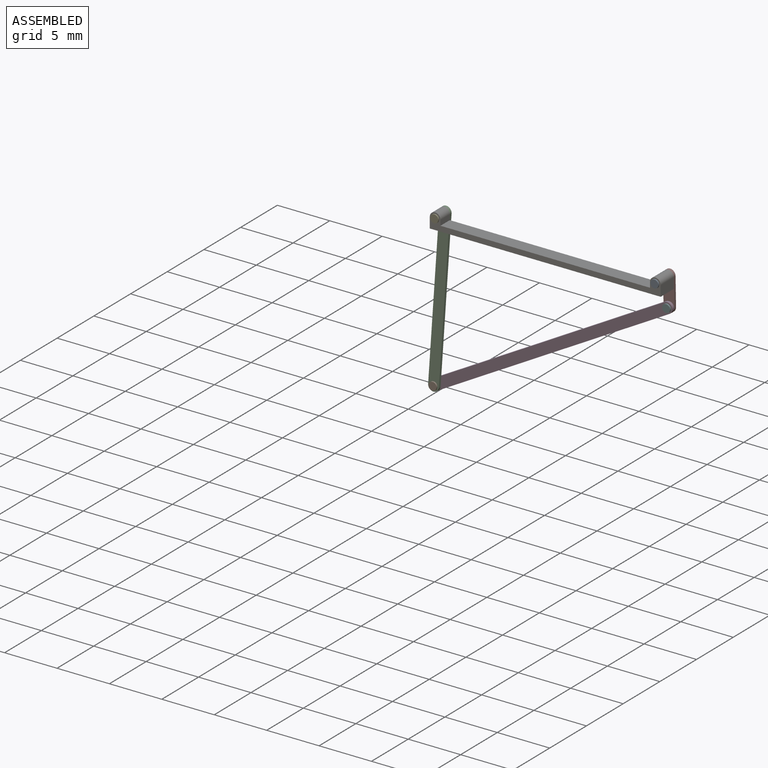
[diagram: assembled view]
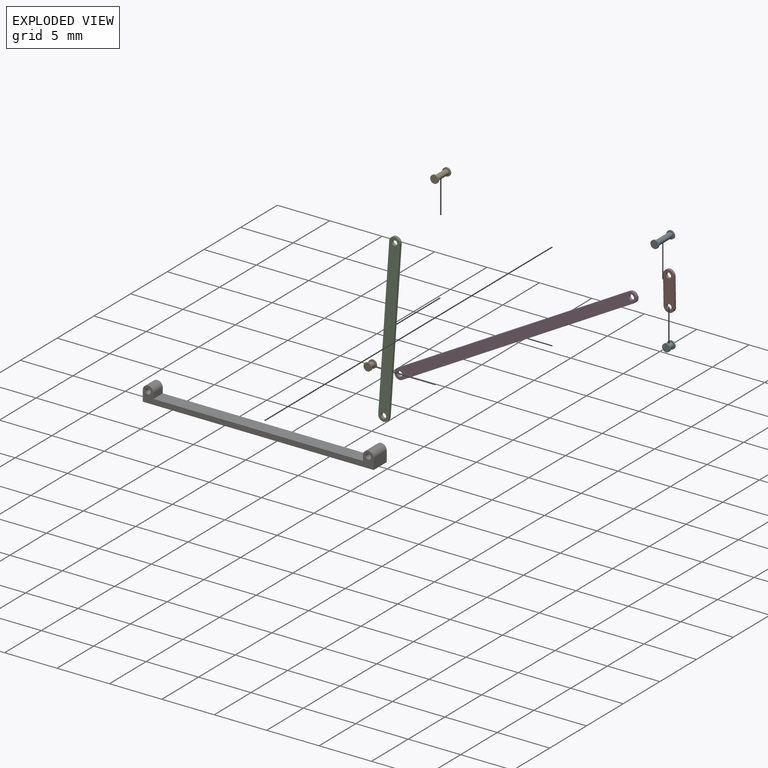
[diagram: exploded view]
GUIDED TOUR — MATED ASSEMBLY (Onshape document 591199dec48c55c5732cc165, AutoMate assembly 591199dec48c55c5732cc165_9ff7876f6400b0370b67cebe_6670b3cb5f459a3d72fd4136_default)

This assembly has 8 components, labeled P0..P7 below (a component is one placed occurrence of a part; the same part can appear more than once), held together by 8 mates. A mate is a constraint between two components; its type names the relative motion it leaves free:
  REVOLUTE — leaves rotation about the listed axis free (a hinge).
Axis/direction vectors are unit vectors and 'through' points are millimeter coordinates, both in the assembly's world frame.

MATES
  1. REVOLUTE "Revolute 5": P3 <-> P2, axis (0.000, -1.000, 0.000) through (-9.71, 8.27, -11.78) mm
  2. REVOLUTE "Revolute 6": P4 <-> P6, axis (0.000, 1.000, 0.000) through (-8.66, 6.75, 3.42) mm
  3. REVOLUTE "Revolute 7": P7 <-> P3, axis (0.000, -1.000, 0.000) through (12.39, 8.53, 0.73) mm
  4. REVOLUTE "Revolute 8": P7 <-> P6, axis (0.000, -1.000, 0.000) through (12.34, 8.53, 3.42) mm
  5. REVOLUTE "Revolute 4": P1 <-> P3, axis (0.000, -1.000, 0.000) through (-9.71, 8.53, -11.78) mm
  6. REVOLUTE "Revolute 3": P5 <-> P7, axis (0.000, -1.000, 0.000) through (12.39, 8.78, 0.73) mm
  7. REVOLUTE "Revolute 2": P0 <-> P6, axis (0.000, 1.000, 0.000) through (12.34, 6.75, 3.42) mm
  8. REVOLUTE "Revolute 1": P4 <-> P2, axis (0.000, -1.000, 0.000) through (-8.66, 8.27, 3.42) mm

ASSEMBLY ORDER
  1. P7 — the base component [order verified]
  2. P5 [order verified]
  3. P3 [order verified]
  4. P2 [order verified]
  5. P6 [order verified]
  6. P0 [order verified]
  7. P1 [order verified]
  8. P4 [order verified]
Order-tag legend:
  [order verified] — this step's position reverses a verified removal order: the component was checked to insert without passing through the ones already placed.

Of the 8 components, 4 carry the full construction recipe — the FeatureScript program that regenerates the part's solid from scratch; the rest are supplied as boundary geometry only.
Each toured component is shown spotlighted twice — in the assembled view, then in the exploded view, where a leader line traces a displaced component back to its assembled socket (saturated green if recipe-attached, orange if geometry-only; every other component desaturated gray) — followed by its recipe or geometry summary and the mates that hold it.
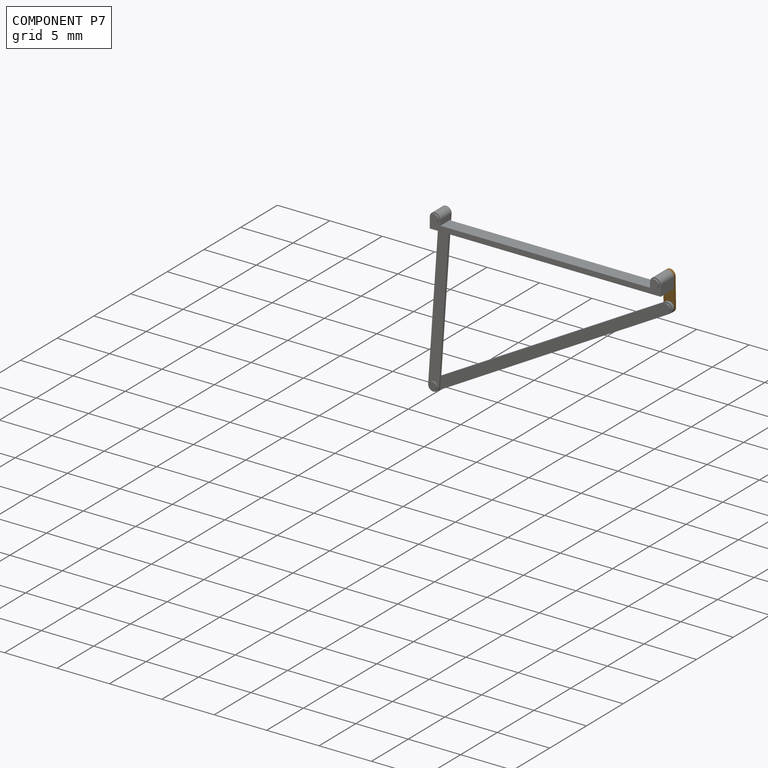
[diagram: component P7 — assembled]
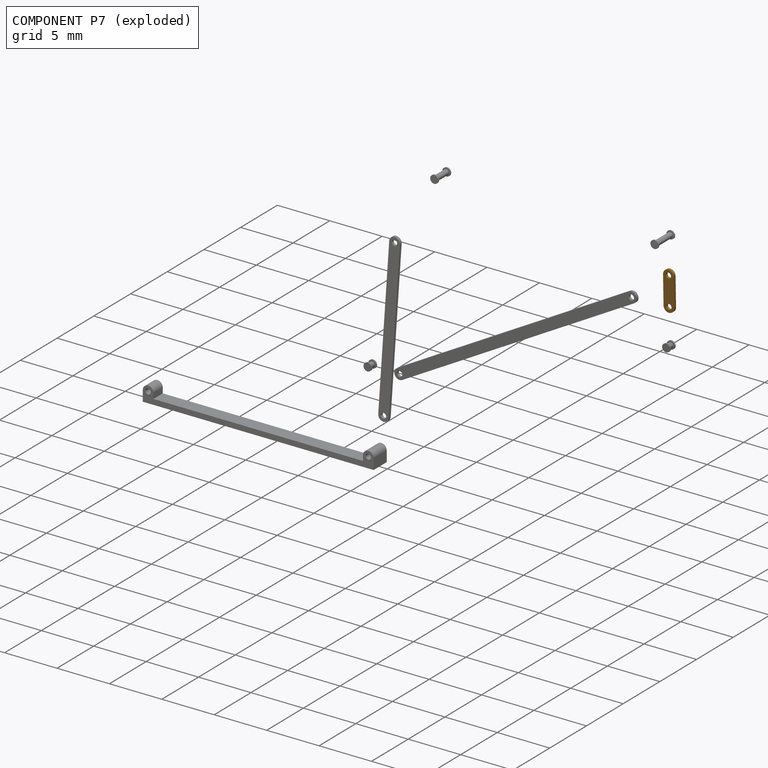
[diagram: component P7 — exploded]
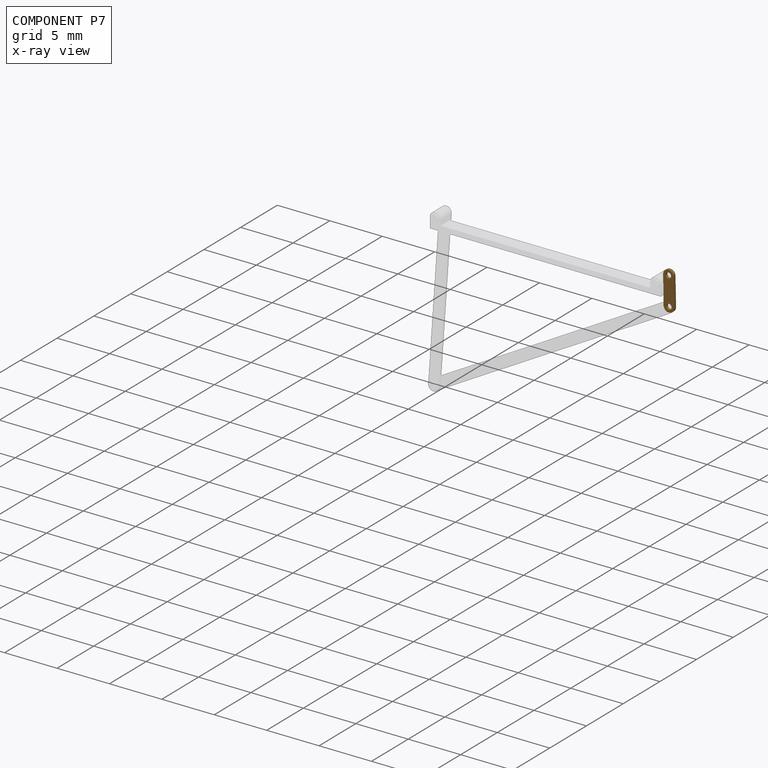
[diagram: component P7 — x-ray view]
COMPONENT P7 — geometry summary (no construction recipe available for this part):
  bounding box: 3.7 x 1.5 x 0.3 mm
  B-rep topology: 1 solid, 8 faces, 36 edges
  volume: 1 mm^3 (56% of its bounding box)
  symmetry: 2-fold rotationally symmetric about the y axis; mirror-symmetric across its y mid-plane
Held by: REVOLUTE mate "Revolute 7" to P3; REVOLUTE mate "Revolute 8" to P6; REVOLUTE mate "Revolute 3" to P5.
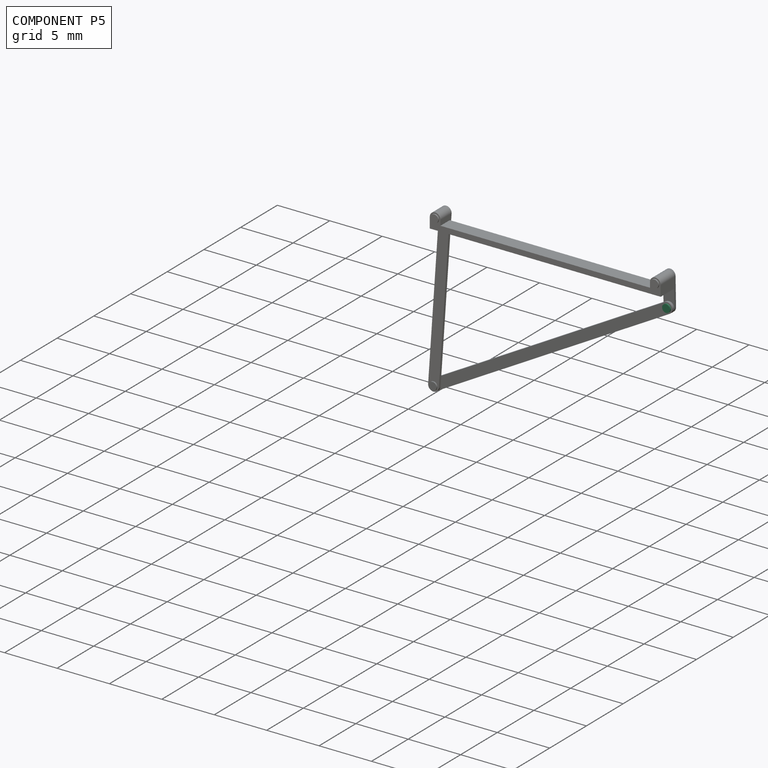
[diagram: component P5 — assembled]
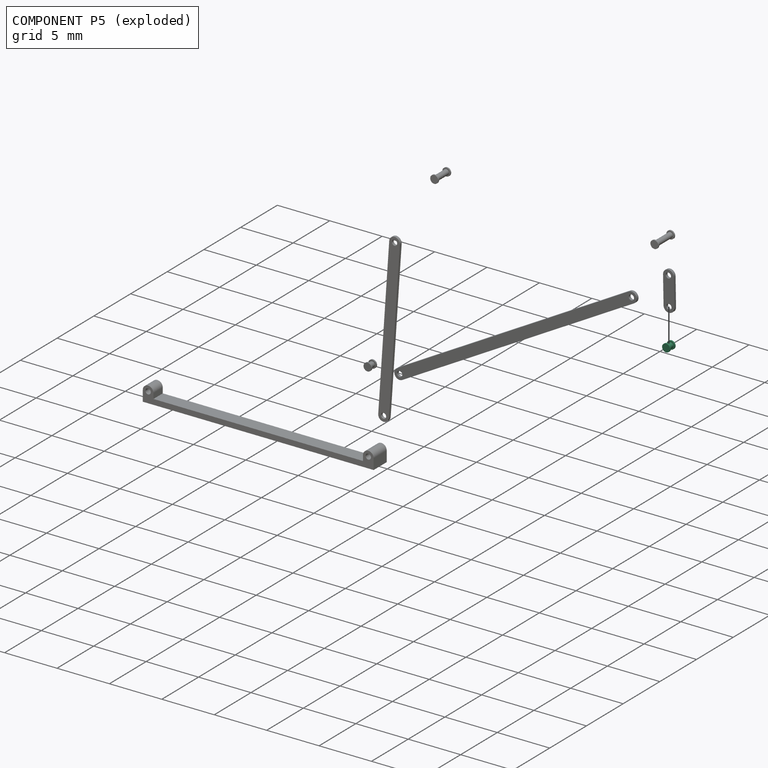
[diagram: component P5 — exploded]
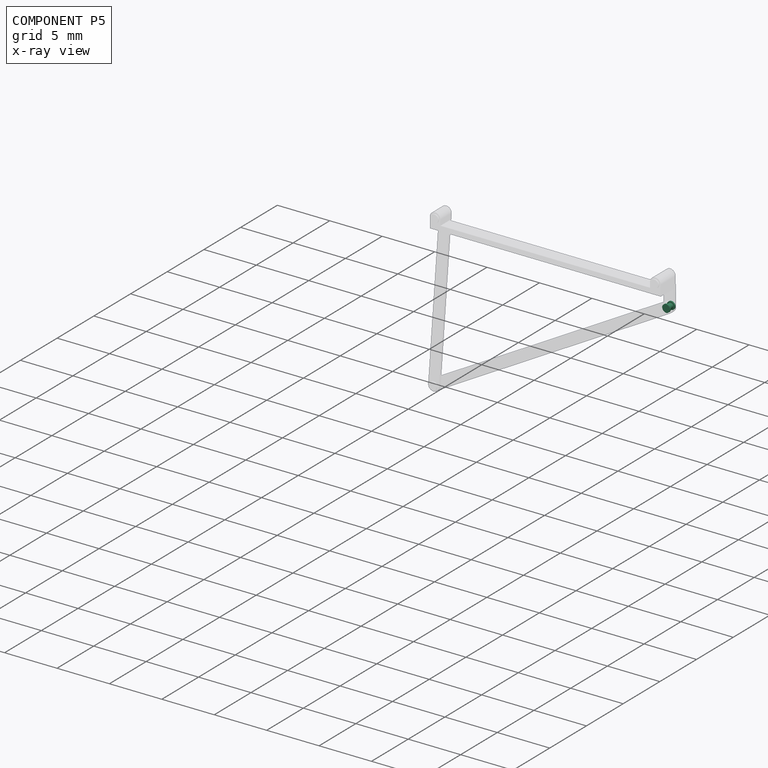
[diagram: component P5 — x-ray view]
COMPONENT P5 — same part as P1 (CADFS 00266961); its construction recipe is shown at P1.
Held by: REVOLUTE mate "Revolute 3" to P7.
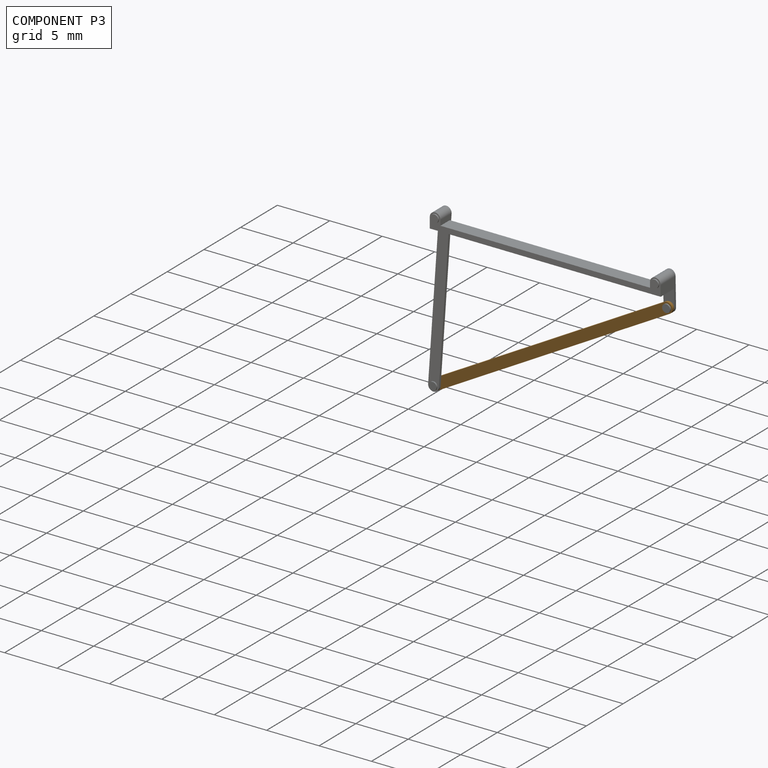
[diagram: component P3 — assembled]
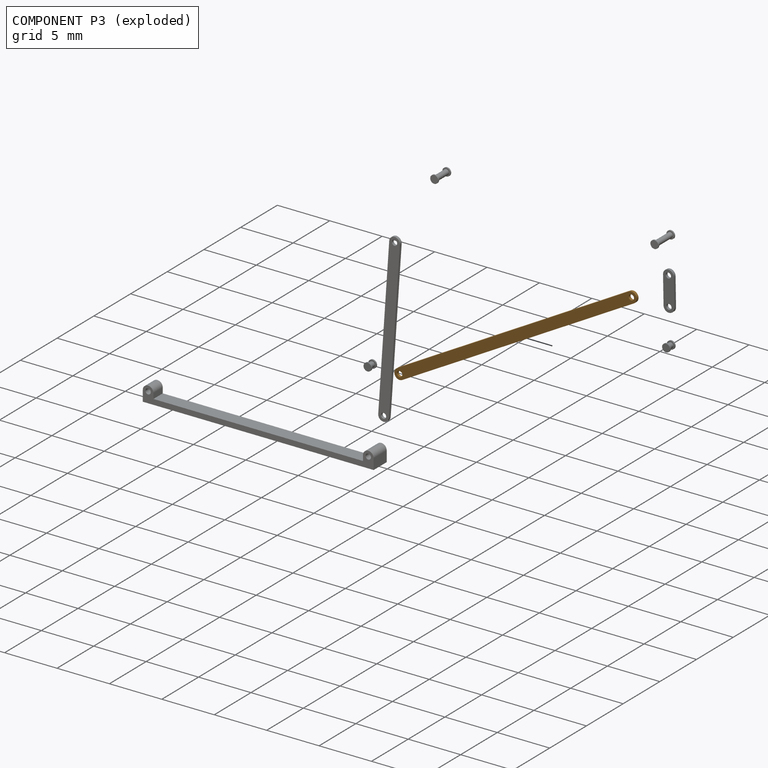
[diagram: component P3 — exploded]
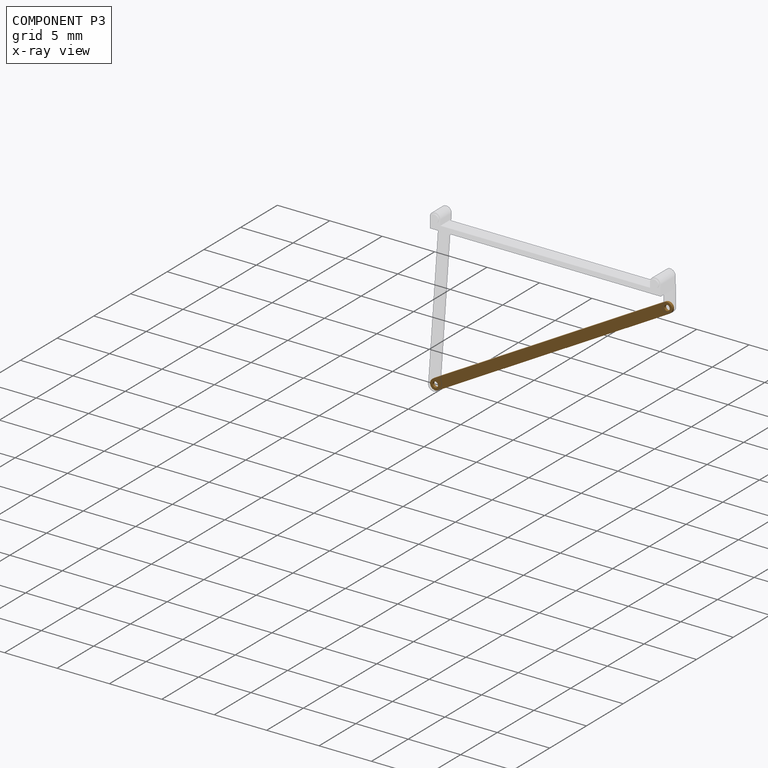
[diagram: component P3 — x-ray view]
COMPONENT P3 — geometry summary (no construction recipe available for this part):
  bounding box: 23.1 x 13.5 x 0.3 mm
  B-rep topology: 1 solid, 8 faces, 36 edges
  volume: 7 mm^3 (8% of its bounding box)
  symmetry: 2-fold rotationally symmetric about the y axis; mirror-symmetric across its y mid-plane
Held by: REVOLUTE mate "Revolute 5" to P2; REVOLUTE mate "Revolute 7" to P7; REVOLUTE mate "Revolute 4" to P1.
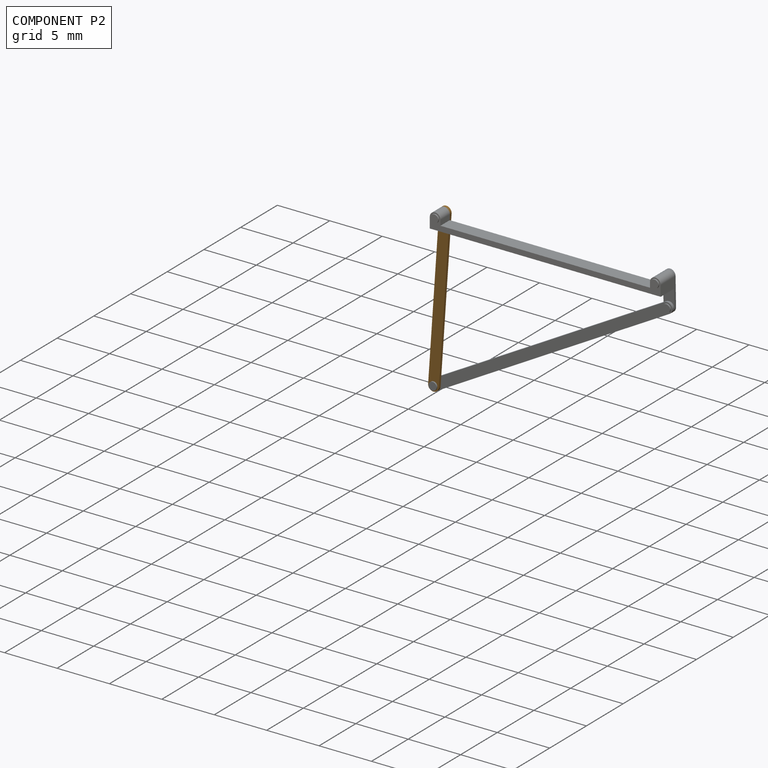
[diagram: component P2 — assembled]
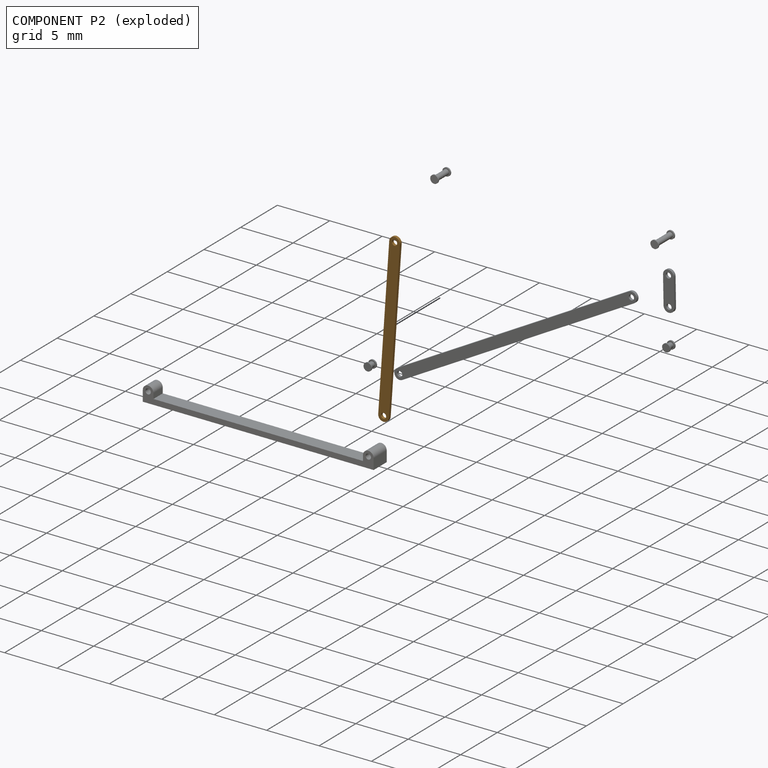
[diagram: component P2 — exploded]
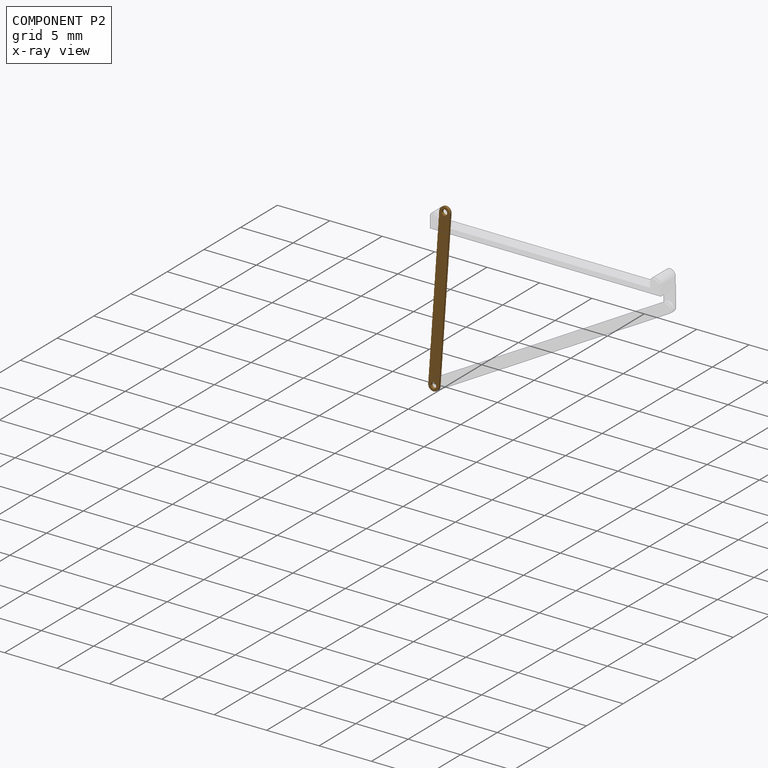
[diagram: component P2 — x-ray view]
COMPONENT P2 — geometry summary (no construction recipe available for this part):
  bounding box: 16.2 x 2.6 x 0.3 mm
  B-rep topology: 1 solid, 8 faces, 36 edges
  volume: 4 mm^3 (37% of its bounding box)
  symmetry: 2-fold rotationally symmetric about the y axis; mirror-symmetric across its y mid-plane
Held by: REVOLUTE mate "Revolute 5" to P3; REVOLUTE mate "Revolute 1" to P4.
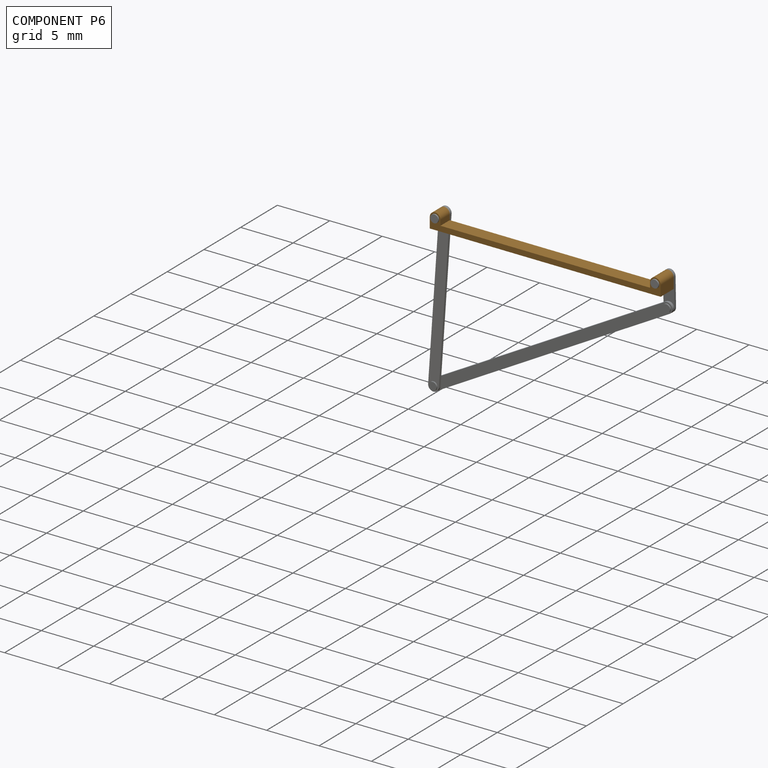
[diagram: component P6 — assembled]
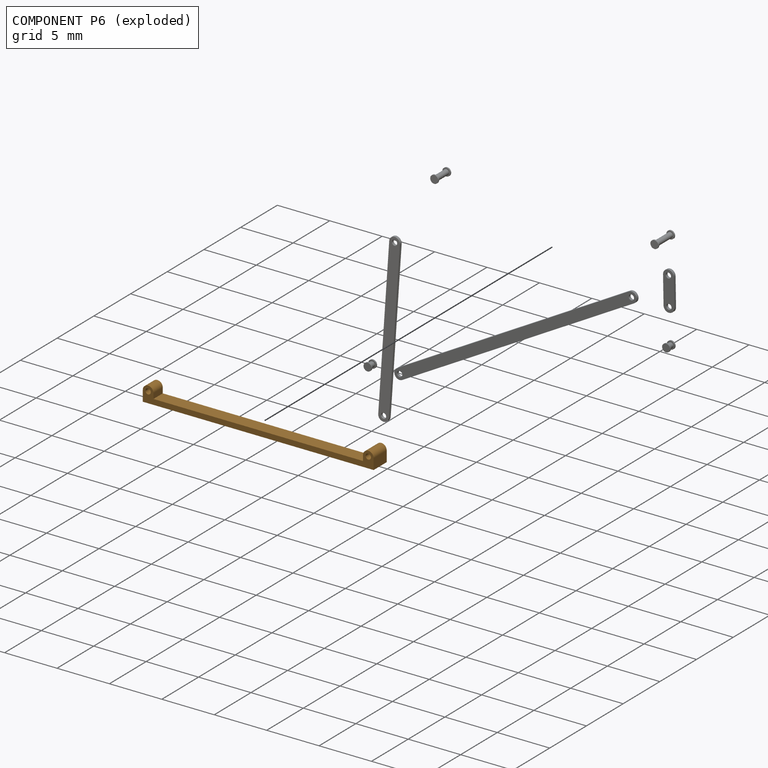
[diagram: component P6 — exploded]
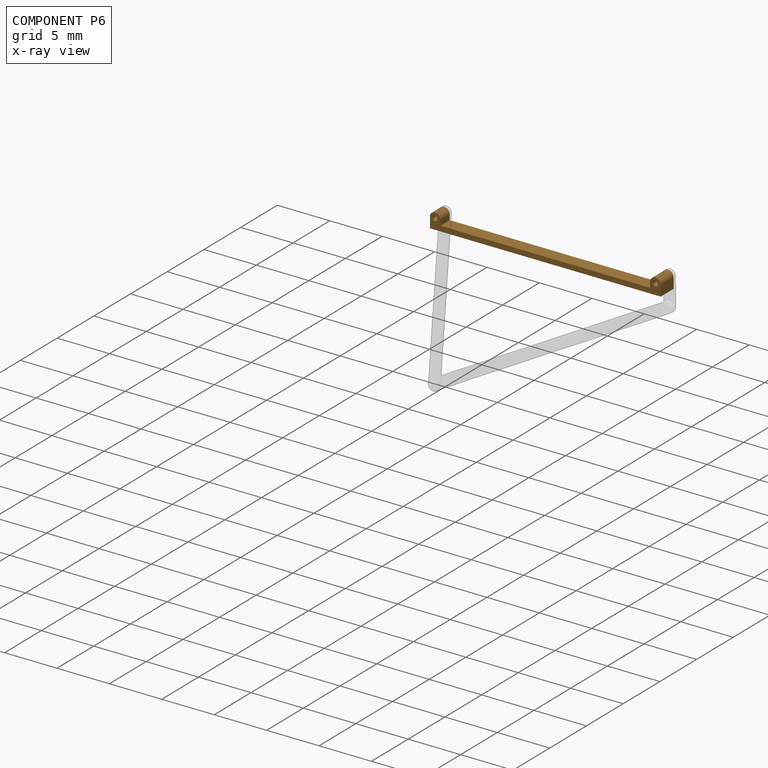
[diagram: component P6 — x-ray view]
COMPONENT P6 — geometry summary (no construction recipe available for this part):
  bounding box: 22.0 x 1.8 x 1.5 mm
  B-rep topology: 1 solid, 13 faces, 66 edges
  volume: 17 mm^3 (28% of its bounding box)
Held by: REVOLUTE mate "Revolute 6" to P4; REVOLUTE mate "Revolute 8" to P7; REVOLUTE mate "Revolute 2" to P0.
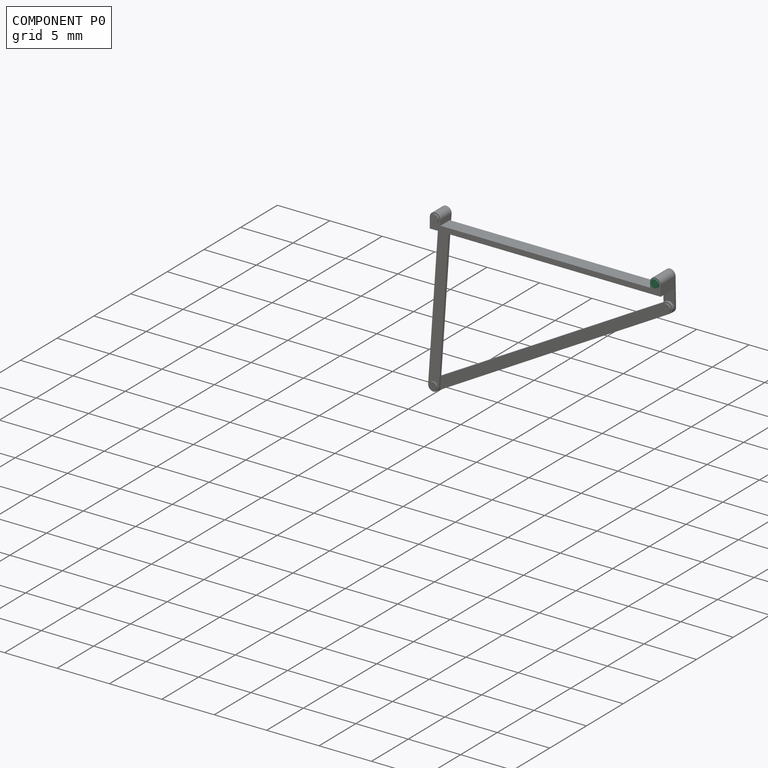
[diagram: component P0 — assembled]
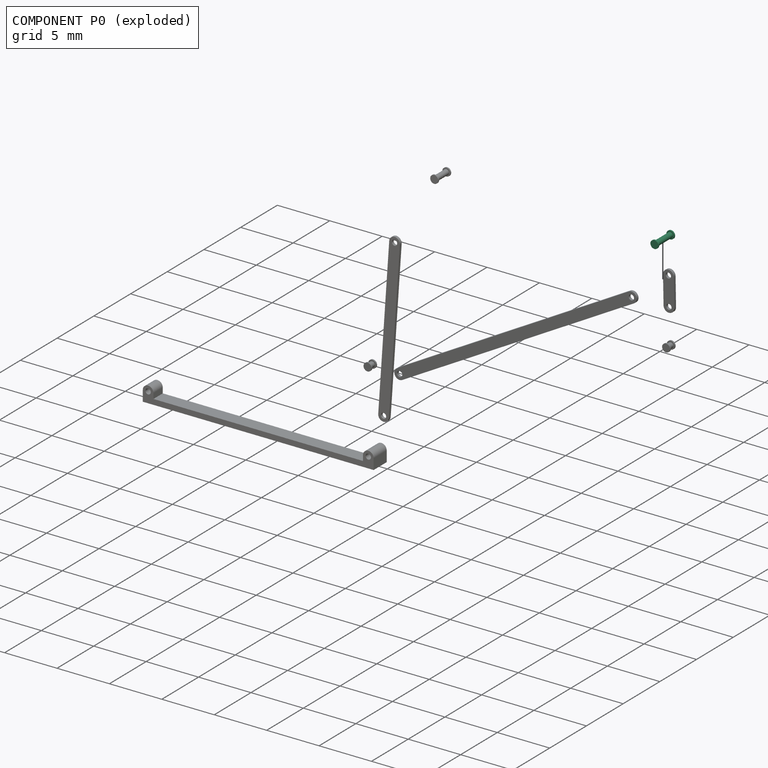
[diagram: component P0 — exploded]
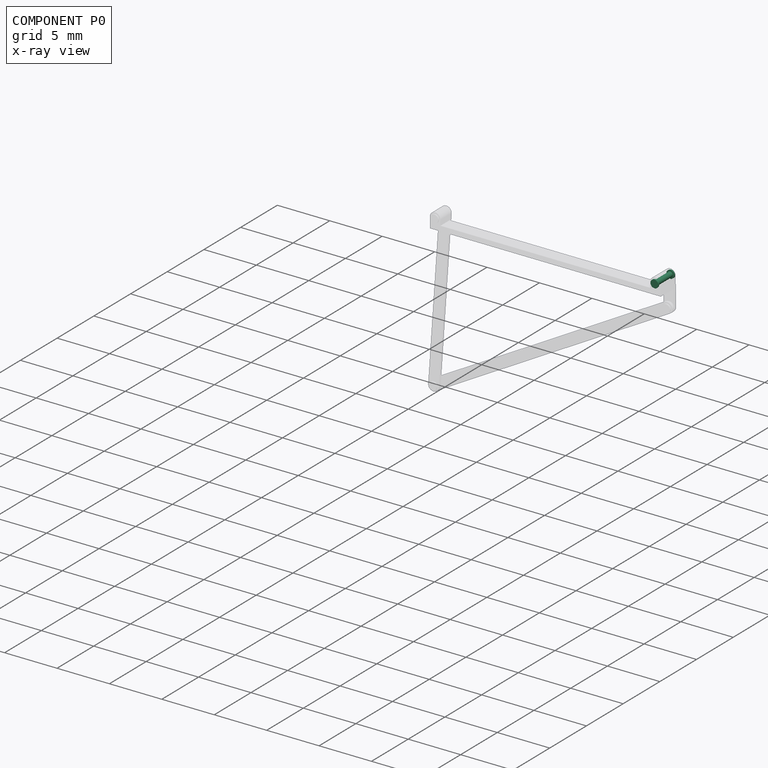
[diagram: component P0 — x-ray view]
COMPONENT P0 — recipe-attached (CADFS 00266960, mesh-verified: the recipe's output STEP matches this component's geometry to below the mesh-comparison resolution (tessellation chordal tolerance ~0.005 mm)).
Held by: REVOLUTE mate "Revolute 2" to P6.
Construction recipe (FeatureScript — the CAD program that rebuilds this solid; sketch coordinates are in the units given by the * unit suffixes, e.g. mm):

FeatureScript 1511;
import(path : "onshape/std/geometry.fs", version : "1511.0");
import(path : "onshape/std/common.fs", version : "1511.0");
const mm = millimeter;
const VERTEX = EntityType.VERTEX;
const EDGE = EntityType.EDGE;
const FACE = EntityType.FACE;
const BODY = EntityType.BODY;
function v(x, y){return vector(x, y);}
function OD(order){return orderDisambiguation(order);}
function OSD(set){return originalSetDisambiguation(set);}
function TD(topology){return topologyDisambiguation(topology);}
function TDD(query){return trueDependencyDisambiguation(query);}
function sQuery(a, b, c) {return sketchEntityQuery(a, b, c);}

annotation { "Feature Type Name" : "Feature", "Feature Type Description" : "" }
export const myFeature = defineFeature(function(context is Context, id is Id, definition is map)
    precondition{}
    {
        {
            var Q0;
            Q0=qCreatedBy(makeId("Front.planeOp"),FACE);
            var sketch = newSketch(context, id + "F0", { "sketchPlane" : qUnion([Q0])});
            skLineSegment(sketch, "E0", {"start": v(2.29, 0) * mm, "end": v(0, 0) * mm});
            skLineSegment(sketch, "E1", {"start": v(0, 0) * mm, "end": v(0, 0.38) * mm});
            skLineSegment(sketch, "E2", {"start": v(0, 0.38) * mm, "end": v(0.13, 0.38) * mm});
            skLineSegment(sketch, "E3", {"start": v(0.13, 0.38) * mm, "end": v(0.13, 0.25) * mm});
            skLineSegment(sketch, "E4", {"start": v(0.13, 0.25) * mm, "end": v(2.16, 0.25) * mm});
            skLineSegment(sketch, "E5", {"start": v(2.16, 0.25) * mm, "end": v(2.16, 0.38) * mm});
            skLineSegment(sketch, "E6", {"start": v(2.16, 0.38) * mm, "end": v(2.29, 0.38) * mm});
            skLineSegment(sketch, "E7", {"start": v(2.29, 0.38) * mm, "end": v(2.29, 0) * mm});
            skSolve(sketch);
        }
        {
            var Q0;
            Q0 = qSketchRegion(id + "F0", true);
            var Q1;
            Q1=sQuery(id+"F0.wireOp",EDGE,"E0");
            revolve(context, id + "F1", {"entities" : qUnion([Q0]), "axis" : qUnion([Q1]), "revolveType" : RevolveType.FULL});
        }
    });
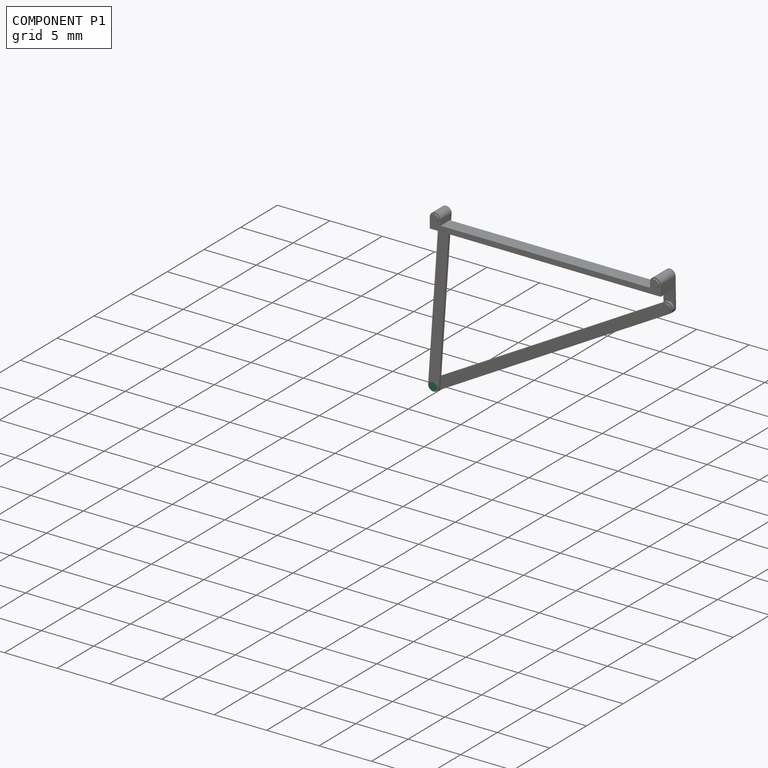
[diagram: component P1 — assembled]
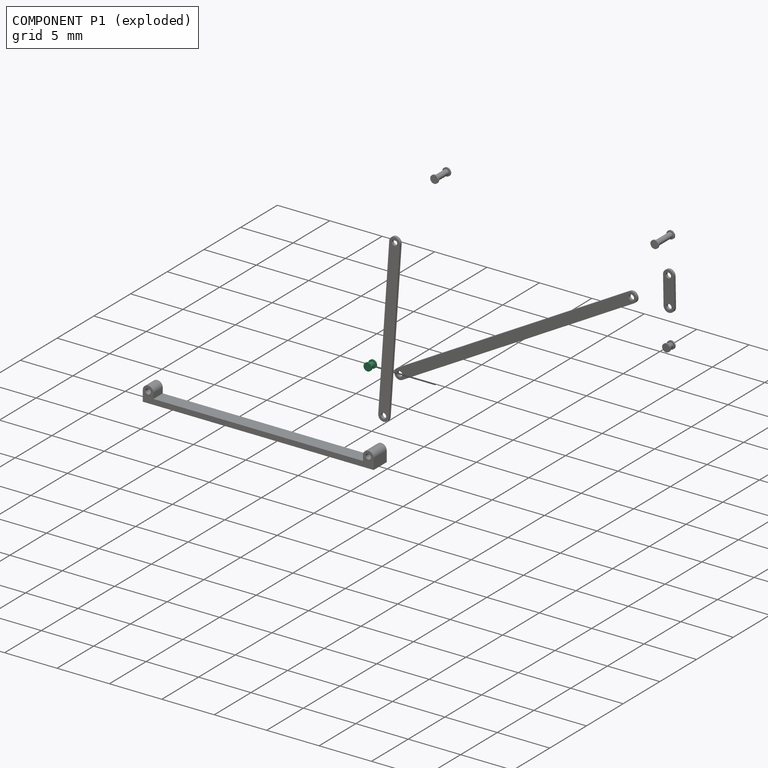
[diagram: component P1 — exploded]
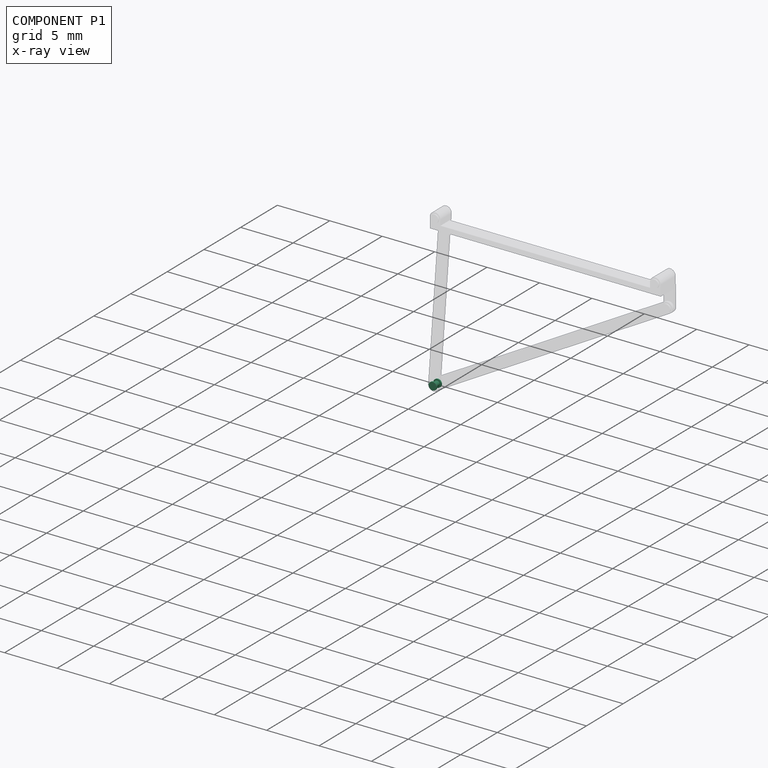
[diagram: component P1 — x-ray view]
COMPONENT P1 — recipe-attached (CADFS 00266961, mesh-verified: the recipe's output STEP matches this component's geometry to below the mesh-comparison resolution (tessellation chordal tolerance ~0.005 mm)).
Held by: REVOLUTE mate "Revolute 4" to P3.
Construction recipe (FeatureScript — the CAD program that rebuilds this solid; sketch coordinates are in the units given by the * unit suffixes, e.g. mm):

FeatureScript 1511;
import(path : "onshape/std/geometry.fs", version : "1511.0");
import(path : "onshape/std/common.fs", version : "1511.0");
const mm = millimeter;
const VERTEX = EntityType.VERTEX;
const EDGE = EntityType.EDGE;
const FACE = EntityType.FACE;
const BODY = EntityType.BODY;
function v(x, y){return vector(x, y);}
function OD(order){return orderDisambiguation(order);}
function OSD(set){return originalSetDisambiguation(set);}
function TD(topology){return topologyDisambiguation(topology);}
function TDD(query){return trueDependencyDisambiguation(query);}
function sQuery(a, b, c) {return sketchEntityQuery(a, b, c);}

annotation { "Feature Type Name" : "Feature", "Feature Type Description" : "" }
export const myFeature = defineFeature(function(context is Context, id is Id, definition is map)
    precondition{}
    {
        {
            var Q0;
            Q0=qCreatedBy(makeId("Front.planeOp"),FACE);
            var sketch = newSketch(context, id + "F0", { "sketchPlane" : qUnion([Q0])});
            skLineSegment(sketch, "E0", {"start": v(0, 0) * mm, "end": v(0, 0.38) * mm});
            skLineSegment(sketch, "E1", {"start": v(0, 0.38) * mm, "end": v(0.13, 0.38) * mm});
            skLineSegment(sketch, "E2", {"start": v(0.13, 0.38) * mm, "end": v(0.13, 0.25) * mm});
            skLineSegment(sketch, "E3", {"start": v(0.13, 0.25) * mm, "end": v(0.64, 0.25) * mm});
            skLineSegment(sketch, "E4", {"start": v(0.64, 0.25) * mm, "end": v(0.64, 0.38) * mm});
            skLineSegment(sketch, "E5", {"start": v(0.64, 0.38) * mm, "end": v(0.76, 0.38) * mm});
            skLineSegment(sketch, "E6", {"start": v(0.76, 0.38) * mm, "end": v(0.76, 0) * mm});
            skLineSegment(sketch, "E7", {"start": v(0.76, 0) * mm, "end": v(0, 0) * mm});
            skSolve(sketch);
        }
        {
            var Q0;
            Q0 = qSketchRegion(id + "F0", true);
            var Q1;
            Q1=sQuery(id+"F0.wireOp",EDGE,"E7");
            revolve(context, id + "F1", {"entities" : qUnion([Q0]), "axis" : qUnion([Q1]), "revolveType" : RevolveType.FULL});
        }
    });
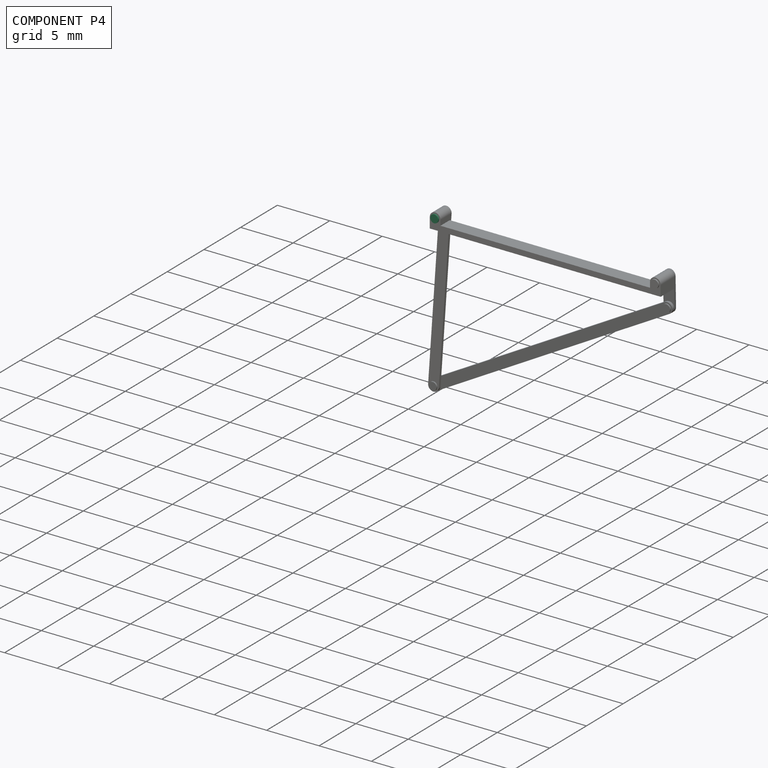
[diagram: component P4 — assembled]
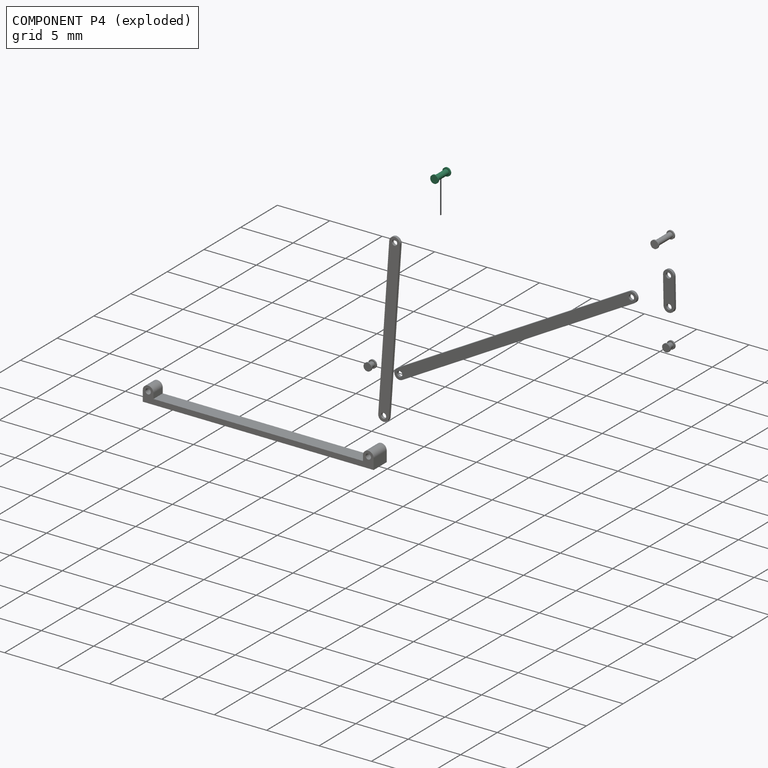
[diagram: component P4 — exploded]
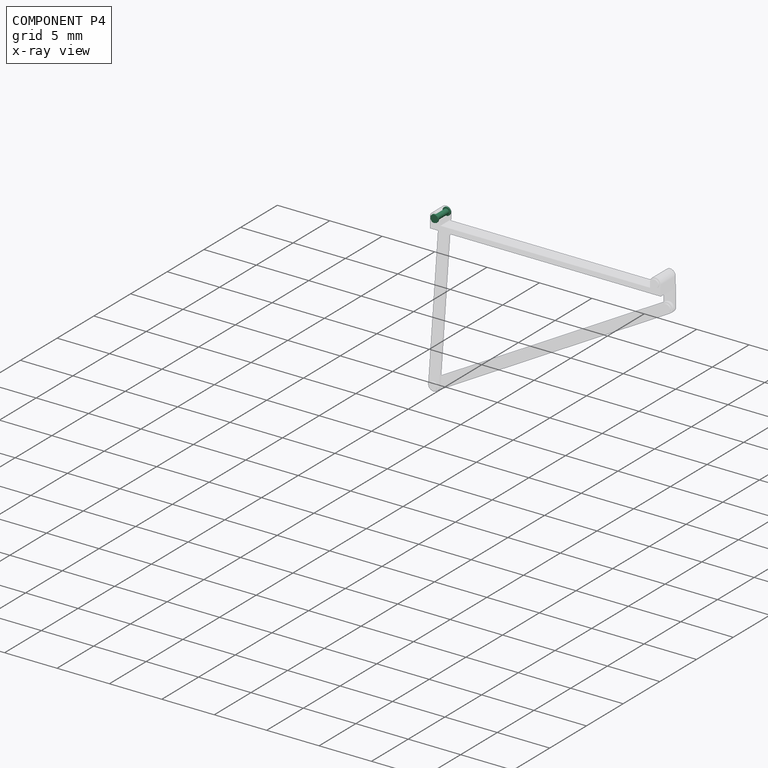
[diagram: component P4 — x-ray view]
COMPONENT P4 — recipe-attached (CADFS 00266959, mesh-verified: the recipe's output STEP matches this component's geometry to below the mesh-comparison resolution (tessellation chordal tolerance ~0.005 mm)).
Held by: REVOLUTE mate "Revolute 6" to P6; REVOLUTE mate "Revolute 1" to P2.
Construction recipe (FeatureScript — the CAD program that rebuilds this solid; sketch coordinates are in the units given by the * unit suffixes, e.g. mm):

FeatureScript 1511;
import(path : "onshape/std/geometry.fs", version : "1511.0");
import(path : "onshape/std/common.fs", version : "1511.0");
const mm = millimeter;
const VERTEX = EntityType.VERTEX;
const EDGE = EntityType.EDGE;
const FACE = EntityType.FACE;
const BODY = EntityType.BODY;
function v(x, y){return vector(x, y);}
function OD(order){return orderDisambiguation(order);}
function OSD(set){return originalSetDisambiguation(set);}
function TD(topology){return topologyDisambiguation(topology);}
function TDD(query){return trueDependencyDisambiguation(query);}
function sQuery(a, b, c) {return sketchEntityQuery(a, b, c);}

annotation { "Feature Type Name" : "Feature", "Feature Type Description" : "" }
export const myFeature = defineFeature(function(context is Context, id is Id, definition is map)
    precondition{}
    {
        {
            var Q0;
            Q0=qCreatedBy(makeId("Front.planeOp"),FACE);
            var sketch = newSketch(context, id + "F0", { "sketchPlane" : qUnion([Q0])});
            skLineSegment(sketch, "E0", {"start": v(0, 0) * mm, "end": v(0, 0.38) * mm});
            skLineSegment(sketch, "E1", {"start": v(1.78, 0) * mm, "end": v(0, 0) * mm});
            skLineSegment(sketch, "E2", {"start": v(0, 0.38) * mm, "end": v(0.13, 0.38) * mm});
            skLineSegment(sketch, "E3", {"start": v(1.78, 0) * mm, "end": v(1.78, 0.38) * mm});
            skLineSegment(sketch, "E4", {"start": v(1.78, 0.38) * mm, "end": v(1.65, 0.38) * mm});
            skLineSegment(sketch, "E5", {"start": v(1.65, 0.38) * mm, "end": v(1.65, 0.25) * mm});
            skLineSegment(sketch, "E6", {"start": v(1.65, 0.25) * mm, "end": v(0.13, 0.25) * mm});
            skLineSegment(sketch, "E7", {"start": v(0.13, 0.25) * mm, "end": v(0.13, 0.38) * mm});
            skSolve(sketch);
        }
        {
            var Q0;
            Q0 = qSketchRegion(id + "F0", true);
            var Q1;
            Q1=sQuery(id+"F0.wireOp",EDGE,"E1");
            revolve(context, id + "F1", {"entities" : qUnion([Q0]), "axis" : qUnion([Q1]), "revolveType" : RevolveType.FULL});
        }
    });
PROVENANCE & LICENSES
Assembly (occurrences, transforms, mates, per-part STEP geometry): AutoMate dataset, Zenodo record 7776208, CC0.
Construction recipes: CADFS (HuggingFace VladPyatov/CADFS, CC-BY-4.0, layered over the ABC dataset), FeatureScript reconstruction programs keyed by ABC model id.
Join: ABC meta listings map ABC model id -> Onshape documentId; within a shared document, parts are matched by geometric signature (bounding-box dims + volume at 0.1% relative tolerance, exact B-rep face/solid counts).
Verification: 4 of this assembly's 8 components carry a recipe attachment, and every attachment is mesh-verified: the CADFS STEP and the AutoMate member STEP were compared as meshes in their shared local frame (symmetric sampled-point-to-mesh distance); worst across the 4 attachments: below the mesh-comparison resolution (tessellation chordal tolerance ~0.005 mm) on a 3 mm part.
Renders: orthographic iso camera (az 35 / el 25); the floor grid conveys scale (grid pitch printed in each image; no ruler). In the exploded view each component is displaced by its stored offset vector: the offsets alone carry the explosion direction (mate normal/axis signs are not orientation cues and do not encode it), and separation distances are assigned per mate-chain, not proportionally to assembly-order depth.
